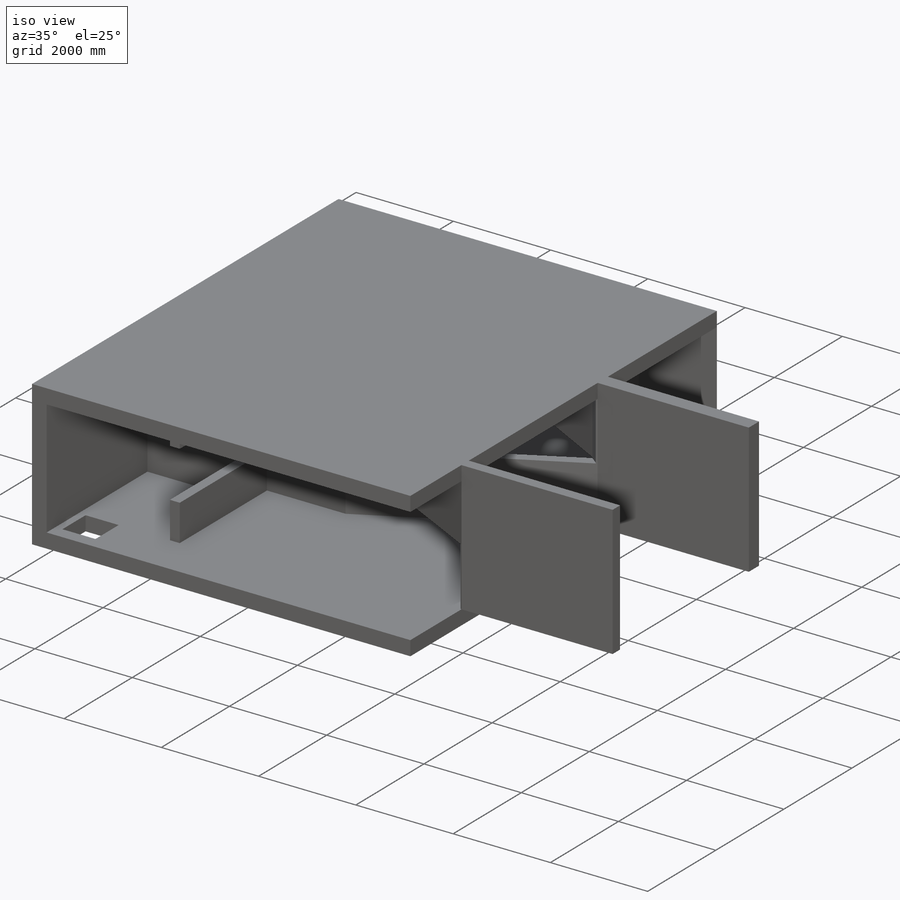
[diagram: iso view]
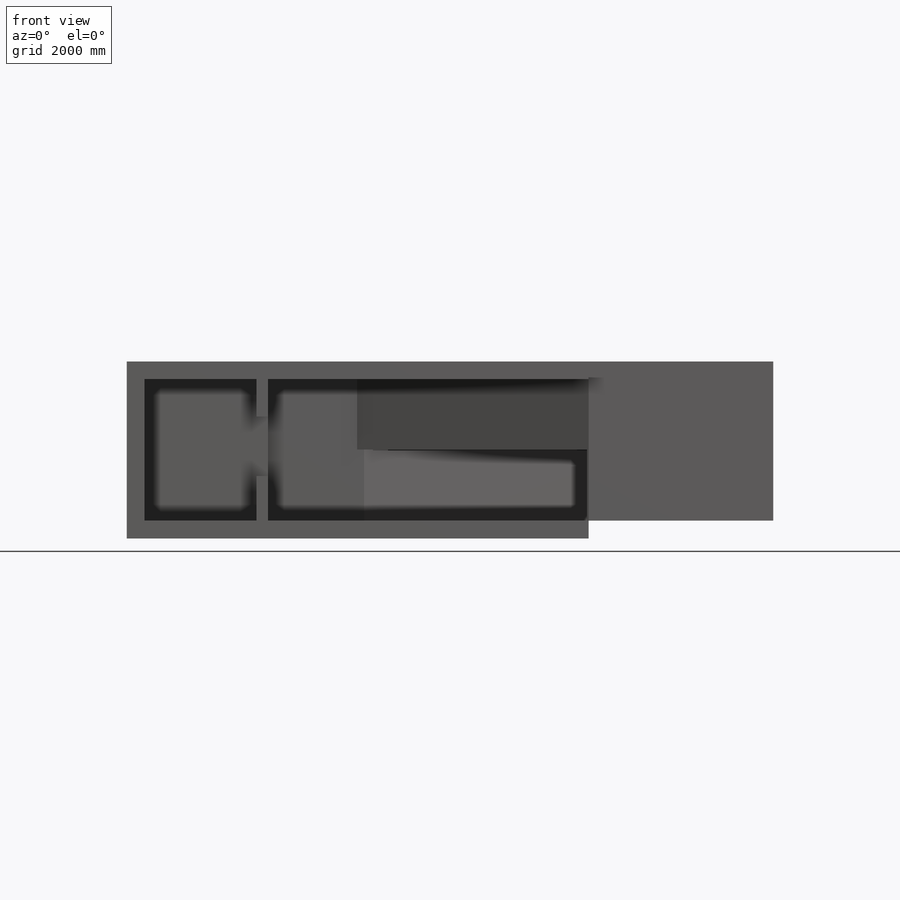
[diagram: front view]
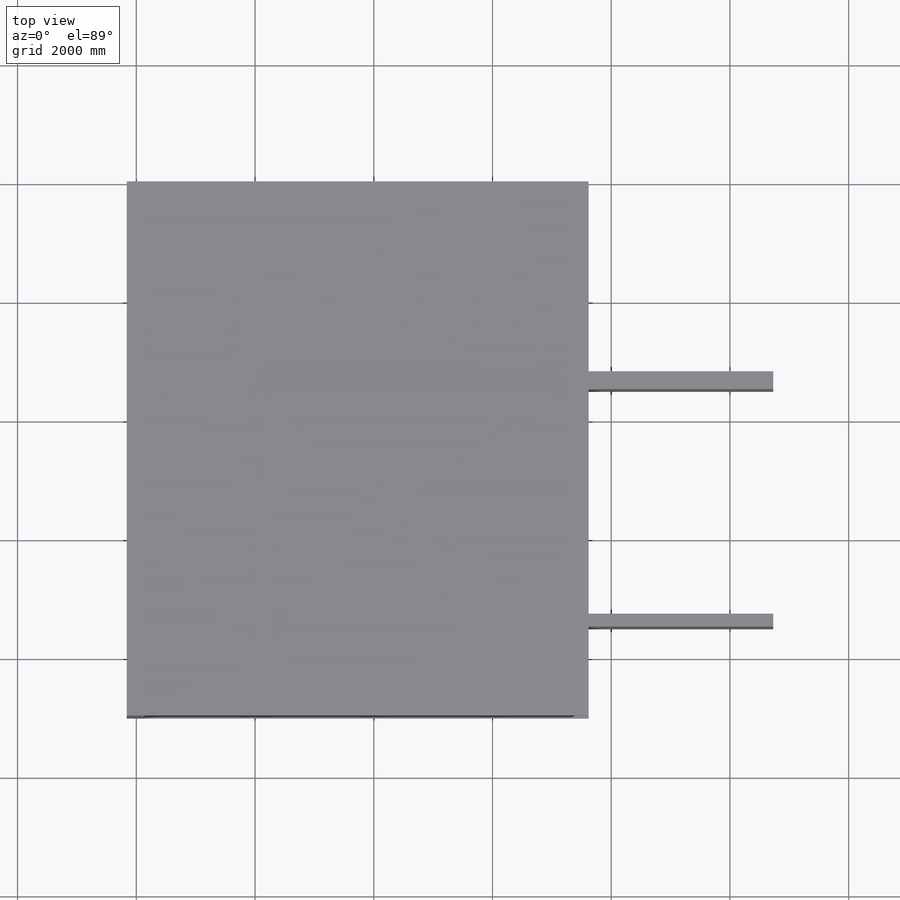
[diagram: top view]
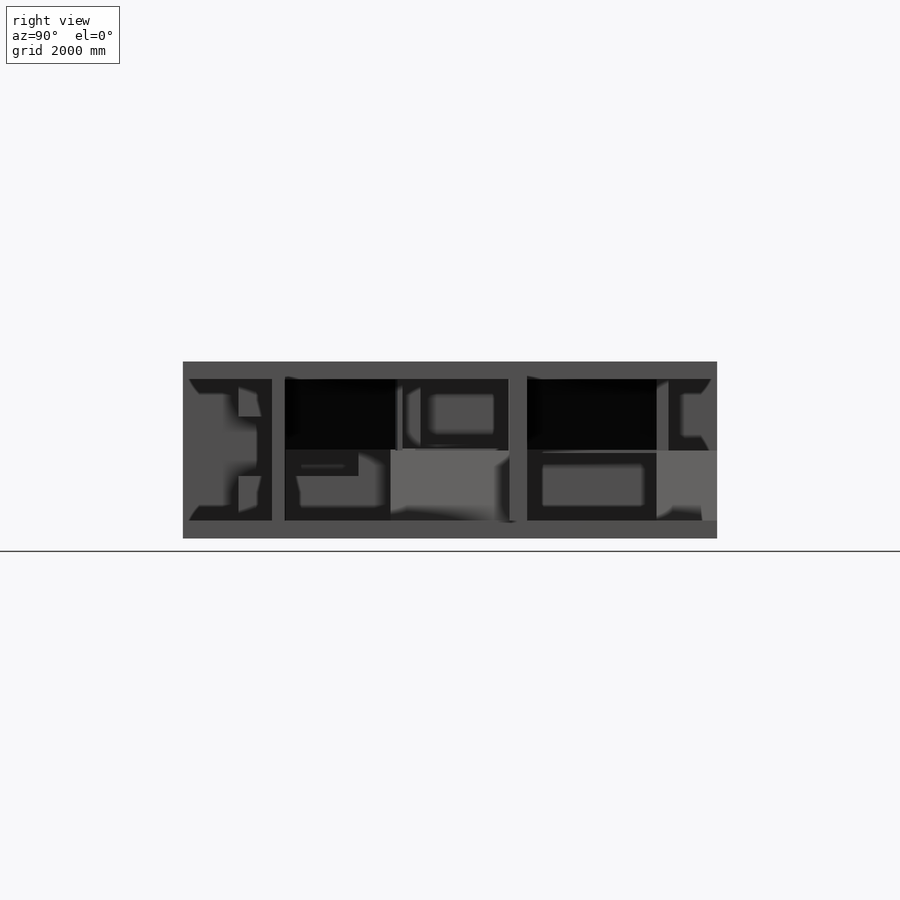
[diagram: right view]
SOLIDWORKS PART (.sldprt)
format: sldprt  version: not decoded by parser v0  size: 645,632 bytes
history: native  units: mm
features: sketch x15, extrude x9, cut_extrude x6, material x1 (+12 scaffold rows collapsed)
feature tree (43):
  scaffold x12  (default folders/planes/origin — collapsed)
  material  "Material <not specified>"
  sketch  "Sketch1"  dims[c1.D1=1860.0mm c1.D2=2380.0mm c1.D3=300.0mm c1.D4=300.0mm c1.D5=300.0mm c1.D6=~2530.538697mm c2.D5=300.0mm c2.D6=10.0mm c2.D1=2980.0mm c3.D1=~1.909152deg c3.length=7750.0mm c3.D2=2400.0mm c3.D6=300.0mm c3.D7=1910.0mm c4.D1=7780.0mm c4.D2=2380.0mm c4.D3=300.0mm]
  extrude  "Boss-Extrude1"  Depth=9000mm
  sketch  "Sketch2"
  extrude  "Boss-Extrude2"  Depth=0.1mm
  sketch  "Sketch4"  dims[c1.D1=1150.0mm c1.D2=200.0mm c1.D3=3700.0mm c1.D4=1750.0mm c1.D5=2000.0mm c1.D6=850.0mm c1.D7=2480.0mm c1.D8=440.0mm c1.D9=440.0mm c1.D10=340.0mm c1.D11=~4843.139478mm c2.D11=~0.708662deg c3.D11=~4843.139478mm c3.D8=3890.0mm c3.D10=300.0mm c4.D11=1910.0mm c4.D12=2000.0mm c4.D13=1150.0mm c4.D14=~4495.875888mm c4.D15=90.0deg c4.D7=2480.0mm c4.D9=~4333.612812mm c5.D14=90.0deg c5.D11=1910.0mm c5.D9=300.0mm c6.D14=300.0mm c6.D15=300.0mm c6.D9=300.0mm c7.D15=~337.328453mm c7.D14=300.0mm c7.D9=1900.0mm c8.D14=~1978.629036mm c8.D9=1900.0mm c9.D14=200.0mm c9.D15=2560.0mm c9.D16=2560.0mm c9.D8=1910.0mm c9.D10=2000.0mm c9.D11=1500.0mm c9.D12=300.0mm c9.D13=820.0mm c10.D16=200.0mm c10.D8=4280.0mm c10.D17=300.0mm c10.D18=4560.0mm c10.D9=1880.0mm c10.D5=7750.0mm]
  cut_extrude  "Cut-Extrude1"  [1 undecoded]
  extrude  "Boss-Extrude3"  [1 undecoded]
  sketch  "Sketch4<9>"
  sketch  "Sketch11"
  cut_extrude  "Cut-Extrude10"  Depth=1199mm
  sketch  "Sketch13"  dims[D1=~4863.639923mm]
  cut_extrude  "Cut-Extrude16"  Depth=1199mm
  sketch  "Sketch14"
  cut_extrude  "Cut-Extrude19"  Depth=1199mm
  sketch  "Sketch15"  dims[c1.D1=100.0mm c1.D2=150.0mm c1.D3=250.0mm c1.D4=4100.0mm c1.D5=150.0mm c1.D6=2300.0mm c1.D7=2080.0mm c2.D3=2320.0mm c2.D6=2400.0mm c2.D7=1810.0mm]
  extrude  "Boss-Extrude4"  Depth=1140mm
  extrude  "Boss-Extrude5"  [1 undecoded]
  sketch  "Sketch15<2>"
  sketch  "Sketch16"  dims[D1=1862.0mm]
  extrude  "Boss-Extrude6"  [1 undecoded]
  sketch  "Sketch17"  dims[D1=50.0mm]
  extrude  "Boss-Extrude7"  [1 undecoded]
  sketch  "Sketch18"  dims[D2=290.0mm]
  cut_extrude  "Cut-Extrude21"  Depth=100mm
  sketch  "Sketch19"  dims[c1.D1=1567.5mm c1.D2=74.48mm c1.D3=74.48mm c1.D4=127.68mm c1.D5=212.8mm c1.D6=104.5mm c2.D1=1650.0mm c2.D7=1150.0mm c2.D8=1650.0mm c2.D2=74.48mm c3.D8=2400.0mm]
  extrude  "Boss-Extrude8"  [1 undecoded]
  sketch  "Sketch21"  dims[D1=1430.0mm D2=~47.063906mm]
  extrude  "Boss-Extrude9"  Depth=74.48mm
  sketch  "Sketch22"  dims[D1=750.0mm D2=1000.0mm D3=630.0mm]
  cut_extrude  "Cut-Extrude22"  Depth=597mm
decode coverage: 19 of 30 modeling features carry decoded parameters
note: ~ marks probable driven/reference dimensions
note: 6 parameter values undecoded
summary: no parameter record found for 6 features
note: suppression state not decoded; provenance and decode notes live in map.json
